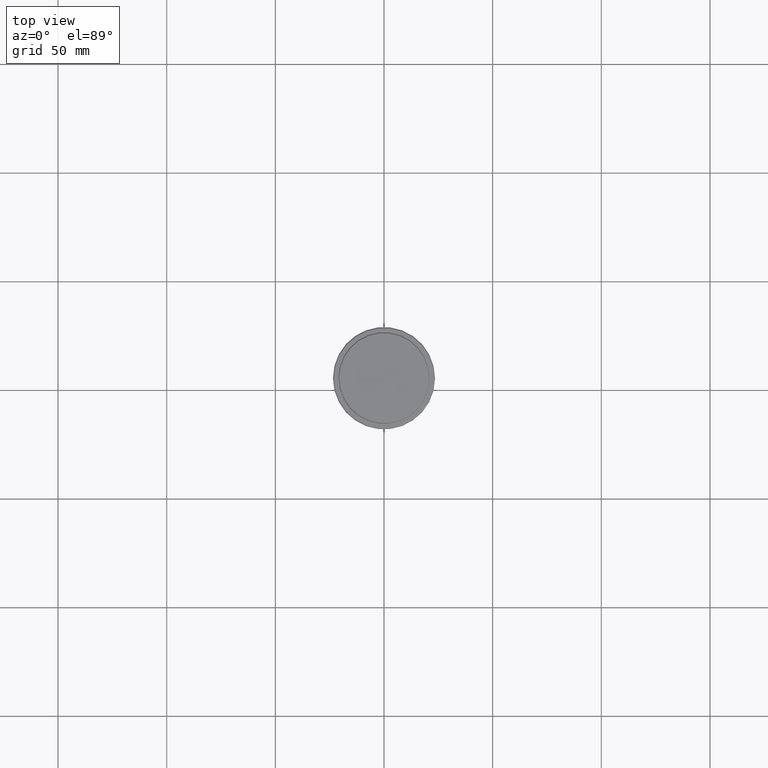
[diagram: clean part render]
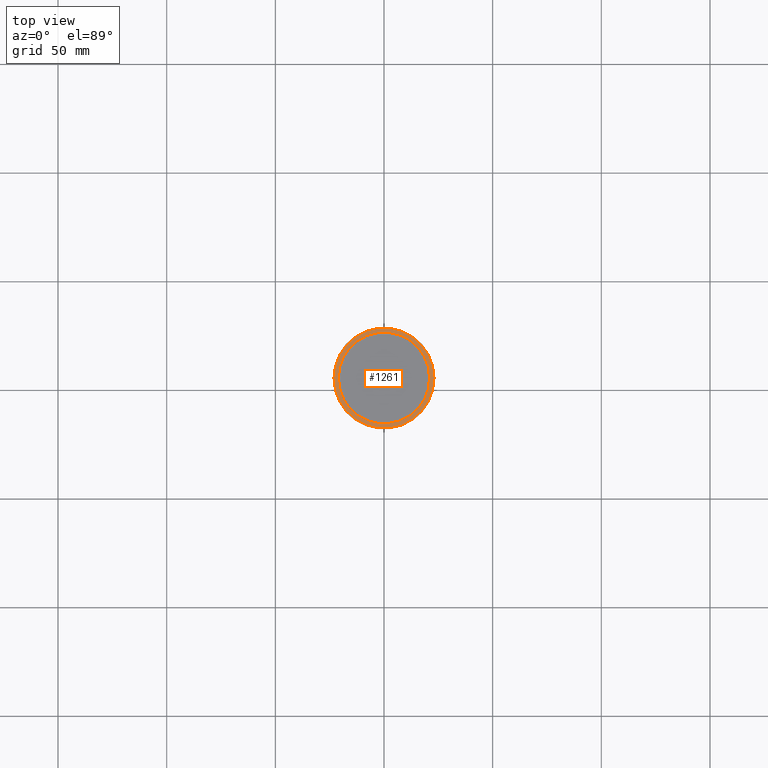
[diagram: same view with one face highlighted and labeled with its STEP entity id]
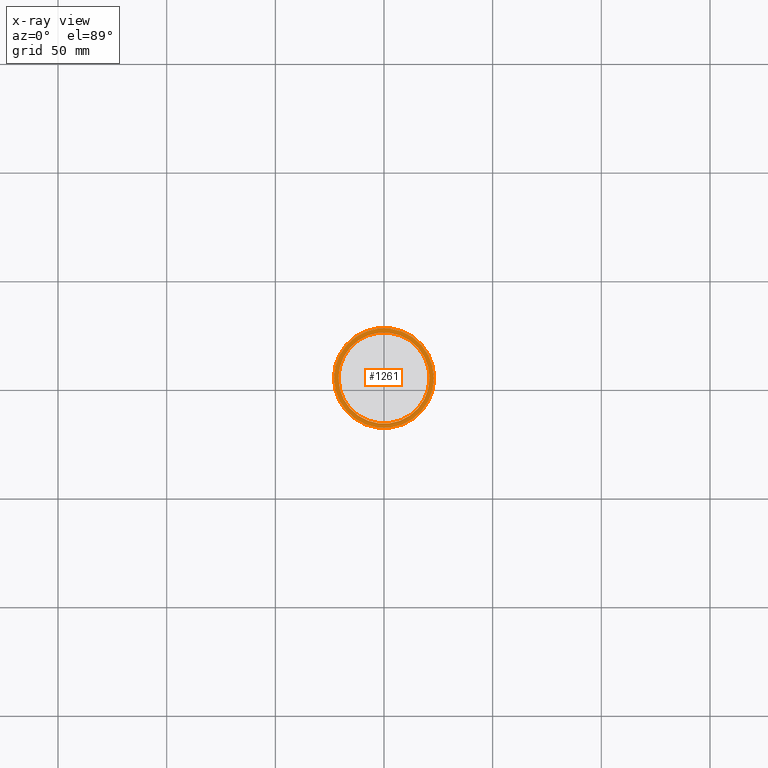
[diagram: x-ray of the same camera — body ghosted, the highlighted face saturated]
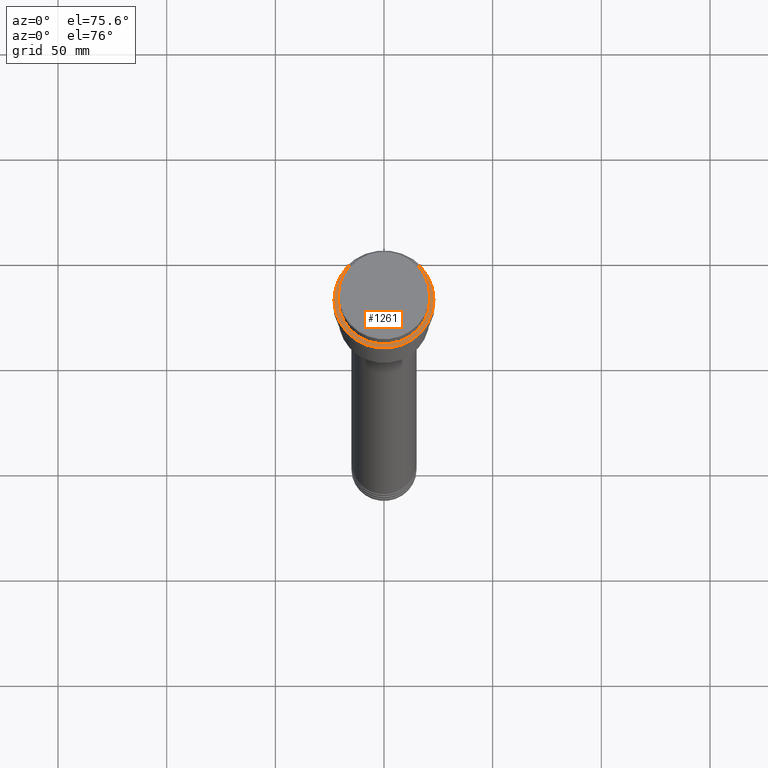
[diagram: same view with one face highlighted and labeled with its STEP entity id]
A machine part, top view. The second image highlights one B-rep face of the part: STEP entity #1261.
The next image is the same camera in x-ray: the body ghosted, the highlighted face saturated — about 0% of this face is hidden behind the body in this view.
A second angle (auxiliary view) of the same face is appended — the face is thin or edge-on in the first view.
In plain terms, the highlighted planar face has unit normal (0, -0, 1).
Its self-contained STEP definition (entity closure, byte-faithful):
#25 = AXIS2_PLACEMENT_3D ( 'NONE', #1108, #994, #119 ) ;
#70 = CARTESIAN_POINT ( 'NONE',  ( 0.000000000000000000, 20.49999999999999645, -9.000000000000000000 ) ) ;
#82 = AXIS2_PLACEMENT_3D ( 'NONE', #343, #1277, #1164 ) ;
#119 = DIRECTION ( 'NONE',  ( 1.000000000000000000, 0.000000000000000000, 0.000000000000000000 ) ) ;
#142 = AXIS2_PLACEMENT_3D ( 'NONE', #1209, #444, #234 ) ;
#146 = CARTESIAN_POINT ( 'NONE',  ( -20.99999999999999289, 2.571758278209440872E-15, -9.000000000000000000 ) ) ;
#181 = FACE_OUTER_BOUND ( 'NONE', #1188, .T. ) ;
#205 = EDGE_CURVE ( 'NONE', #215, #700, #1088, .T. ) ;
#211 = EDGE_CURVE ( 'NONE', #700, #215, #949, .T. ) ;
#215 = VERTEX_POINT ( 'NONE', #1406 ) ;
#234 = DIRECTION ( 'NONE',  ( 1.000000000000000000, 0.000000000000000000, 0.000000000000000000 ) ) ;
#343 = CARTESIAN_POINT ( 'NONE',  ( 0.000000000000000000, 0.000000000000000000, -9.000000000000000000 ) ) ;
#379 = DIRECTION ( 'NONE',  ( 0.000000000000000000, -0.000000000000000000, 1.000000000000000000 ) ) ;
#385 = DIRECTION ( 'NONE',  ( 1.000000000000000000, 0.000000000000000000, 0.000000000000000000 ) ) ;
#441 = CARTESIAN_POINT ( 'NONE',  ( -23.00000000000005329, 0.000000000000000000, -9.000000000000000000 ) ) ;
#444 = DIRECTION ( 'NONE',  ( 0.000000000000000000, 0.000000000000000000, -1.000000000000000000 ) ) ;
#465 = CARTESIAN_POINT ( 'NONE',  ( 0.000000000000000000, 0.000000000000000000, -9.000000000000000000 ) ) ;
#517 = ORIENTED_EDGE ( 'NONE', *, *, #755, .T. ) ;
#599 = PLANE ( 'NONE',  #792 ) ;
#630 = VERTEX_POINT ( 'NONE', #441 ) ;
#683 = ORIENTED_EDGE ( 'NONE', *, *, #1177, .T. ) ;
#700 = VERTEX_POINT ( 'NONE', #146 ) ;
#718 = CIRCLE ( 'NONE', #82, 23.00000000000005329 ) ;
#755 = EDGE_CURVE ( 'NONE', #630, #1105, #764, .T. ) ;
#764 = CIRCLE ( 'NONE', #904, 23.00000000000005329 ) ;
#792 = AXIS2_PLACEMENT_3D ( 'NONE', #70, #379, #385 ) ;
#902 = CARTESIAN_POINT ( 'NONE',  ( 23.00000000000005329, 2.847303808017599689E-15, -9.000000000000000000 ) ) ;
#904 = AXIS2_PLACEMENT_3D ( 'NONE', #465, #1239, #1086 ) ;
#949 = CIRCLE ( 'NONE', #142, 20.99999999999999289 ) ;
#994 = DIRECTION ( 'NONE',  ( 0.000000000000000000, 0.000000000000000000, -1.000000000000000000 ) ) ;
#1086 = DIRECTION ( 'NONE',  ( 1.000000000000000000, 0.000000000000000000, 0.000000000000000000 ) ) ;
#1088 = CIRCLE ( 'NONE', #25, 20.99999999999999289 ) ;
#1105 = VERTEX_POINT ( 'NONE', #902 ) ;
#1108 = CARTESIAN_POINT ( 'NONE',  ( 0.000000000000000000, 0.000000000000000000, -9.000000000000000000 ) ) ;
#1164 = DIRECTION ( 'NONE',  ( 1.000000000000000000, 0.000000000000000000, 0.000000000000000000 ) ) ;
#1177 = EDGE_CURVE ( 'NONE', #1105, #630, #718, .T. ) ;
#1188 = EDGE_LOOP ( 'NONE', ( #517, #683 ) ) ;
#1209 = CARTESIAN_POINT ( 'NONE',  ( 0.000000000000000000, 0.000000000000000000, -9.000000000000000000 ) ) ;
#1239 = DIRECTION ( 'NONE',  ( -0.000000000000000000, -0.000000000000000000, 1.000000000000000000 ) ) ;
#1258 = FACE_BOUND ( 'NONE', #1369, .T. ) ;
#1261 = ADVANCED_FACE ( 'NONE', ( #181, #1258 ), #599, .T. ) ;
#1263 = ORIENTED_EDGE ( 'NONE', *, *, #205, .T. ) ;
#1277 = DIRECTION ( 'NONE',  ( -0.000000000000000000, -0.000000000000000000, 1.000000000000000000 ) ) ;
#1298 = ORIENTED_EDGE ( 'NONE', *, *, #211, .T. ) ;
#1369 = EDGE_LOOP ( 'NONE', ( #1263, #1298 ) ) ;
#1406 = CARTESIAN_POINT ( 'NONE',  ( 20.99999999999999289, 0.000000000000000000, -9.000000000000000000 ) ) ;